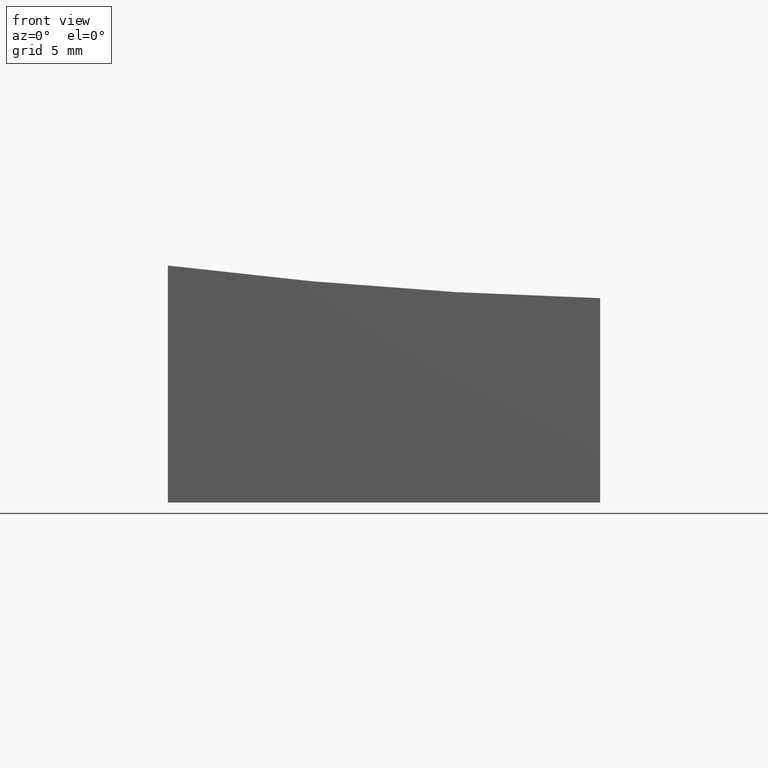
[diagram: clean part render]
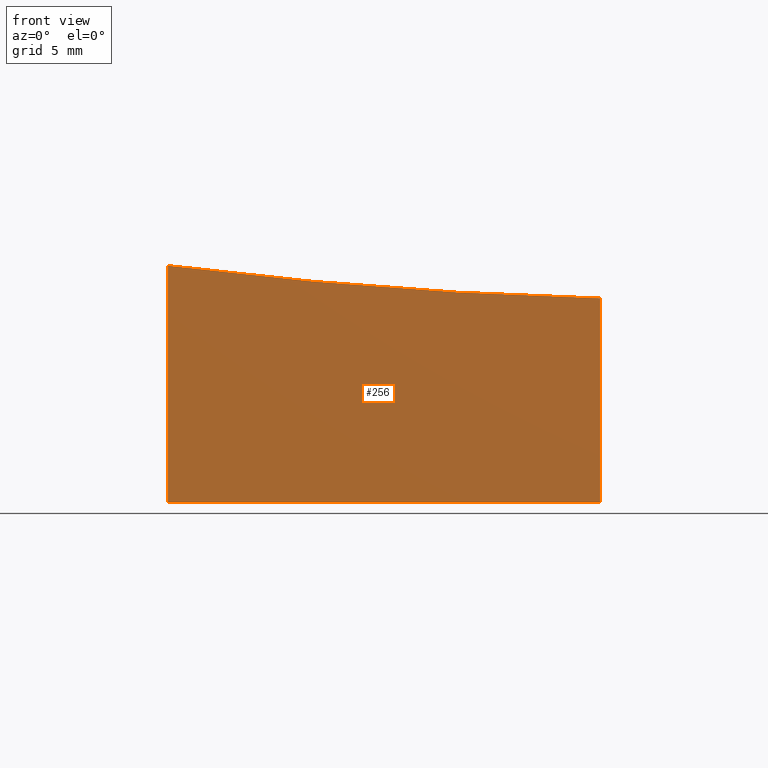
[diagram: same view with one face highlighted and labeled with its STEP entity id]
A machine part, front view. The second image highlights one B-rep face of the part: STEP entity #256.
In plain terms, the highlighted planar face has unit normal (-0, 1, 0).
Its self-contained STEP definition (entity closure, byte-faithful):
#4 = ORIENTED_EDGE ( 'NONE', *, *, #198, .T. ) ;
#5 = VECTOR ( 'NONE', #169, 1000.000000000000000 ) ;
#11 = CARTESIAN_POINT ( 'NONE',  ( 10.00000000000000178, -12.50000000000000000, -0.5463605280738026426 ) ) ;
#15 = CARTESIAN_POINT ( 'NONE',  ( 10.00000000000000178, -12.50000000000000000, 10.00000000000000000 ) ) ;
#53 = DIRECTION ( 'NONE',  ( 1.000000000000000000, 1.734723475976807094E-16, -0.000000000000000000 ) ) ;
#54 = CARTESIAN_POINT ( 'NONE',  ( -9.999999999999998224, -12.50000000000000355, -10.00000000000000000 ) ) ;
#55 = LINE ( 'NONE', #185, #91 ) ;
#58 = DIRECTION ( 'NONE',  ( -1.000000000000000000, -1.738121566355747637E-16, 0.000000000000000000 ) ) ;
#72 = ORIENTED_EDGE ( 'NONE', *, *, #191, .F. ) ;
#88 = VERTEX_POINT ( 'NONE', #11 ) ;
#91 = VECTOR ( 'NONE', #53, 1000.000000000000000 ) ;
#96 = CIRCLE ( 'NONE', #236, 199.6089927833914146 ) ;
#99 = CARTESIAN_POINT ( 'NONE',  ( 15.00000000000002842, -12.49999999999999822, 199.0000000000000000 ) ) ;
#102 = EDGE_CURVE ( 'NONE', #106, #245, #55, .T. ) ;
#103 = CARTESIAN_POINT ( 'NONE',  ( -9.999999999999998224, -12.50000000000000355, 10.00000000000000000 ) ) ;
#105 = LINE ( 'NONE', #103, #137 ) ;
#106 = VERTEX_POINT ( 'NONE', #54 ) ;
#109 = ORIENTED_EDGE ( 'NONE', *, *, #225, .T. ) ;
#120 = PLANE ( 'NONE',  #125 ) ;
#124 = DIRECTION ( 'NONE',  ( -1.734723475976807094E-16, 1.000000000000000000, 0.000000000000000000 ) ) ;
#125 = AXIS2_PLACEMENT_3D ( 'NONE', #15, #172, #149 ) ;
#127 = VERTEX_POINT ( 'NONE', #183 ) ;
#137 = VECTOR ( 'NONE', #272, 1000.000000000000000 ) ;
#149 = DIRECTION ( 'NONE',  ( -1.000000000000000000, -1.734723475976807094E-16, 0.000000000000000000 ) ) ;
#154 = ORIENTED_EDGE ( 'NONE', *, *, #102, .T. ) ;
#158 = EDGE_LOOP ( 'NONE', ( #72, #4, #109, #154 ) ) ;
#168 = LINE ( 'NONE', #192, #5 ) ;
#169 = DIRECTION ( 'NONE',  ( -0.000000000000000000, -0.000000000000000000, -1.000000000000000000 ) ) ;
#172 = DIRECTION ( 'NONE',  ( -1.734723475976807094E-16, 1.000000000000000000, 0.000000000000000000 ) ) ;
#183 = CARTESIAN_POINT ( 'NONE',  ( -10.00000000000000000, -12.50000000000000355, 0.9627560280642266655 ) ) ;
#185 = CARTESIAN_POINT ( 'NONE',  ( 10.00000000000000178, -12.50000000000000000, -10.00000000000000000 ) ) ;
#191 = EDGE_CURVE ( 'NONE', #88, #245, #168, .T. ) ;
#192 = CARTESIAN_POINT ( 'NONE',  ( 10.00000000000000178, -12.50000000000000000, 10.00000000000000000 ) ) ;
#198 = EDGE_CURVE ( 'NONE', #88, #127, #96, .T. ) ;
#212 = CARTESIAN_POINT ( 'NONE',  ( 10.00000000000000178, -12.50000000000000000, -10.00000000000000000 ) ) ;
#225 = EDGE_CURVE ( 'NONE', #127, #106, #105, .T. ) ;
#236 = AXIS2_PLACEMENT_3D ( 'NONE', #99, #124, #58 ) ;
#245 = VERTEX_POINT ( 'NONE', #212 ) ;
#250 = FACE_OUTER_BOUND ( 'NONE', #158, .T. ) ;
#256 = ADVANCED_FACE ( 'NONE', ( #250 ), #120, .F. ) ;
#272 = DIRECTION ( 'NONE',  ( -0.000000000000000000, -0.000000000000000000, -1.000000000000000000 ) ) ;